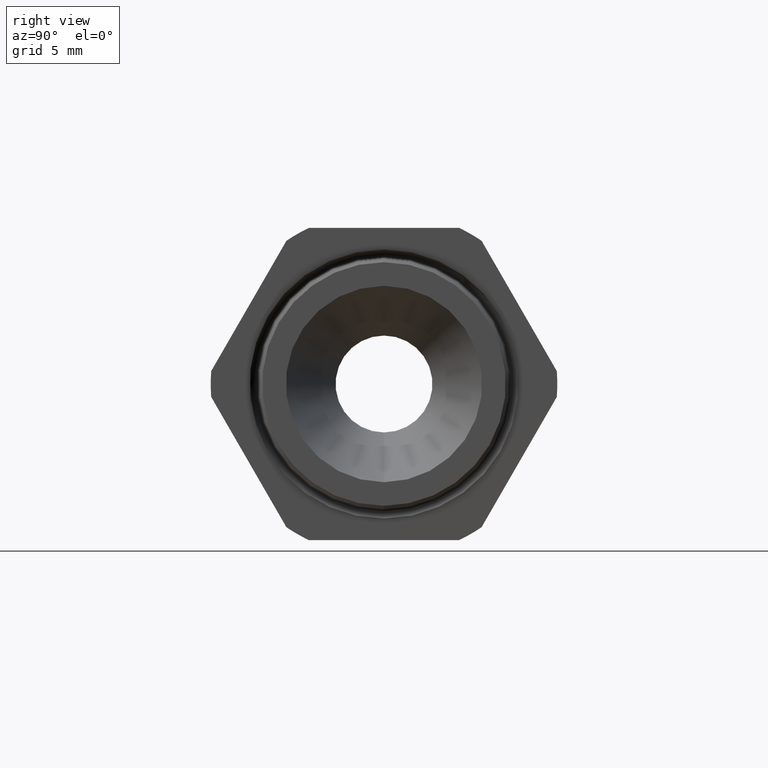
[diagram: clean part render]
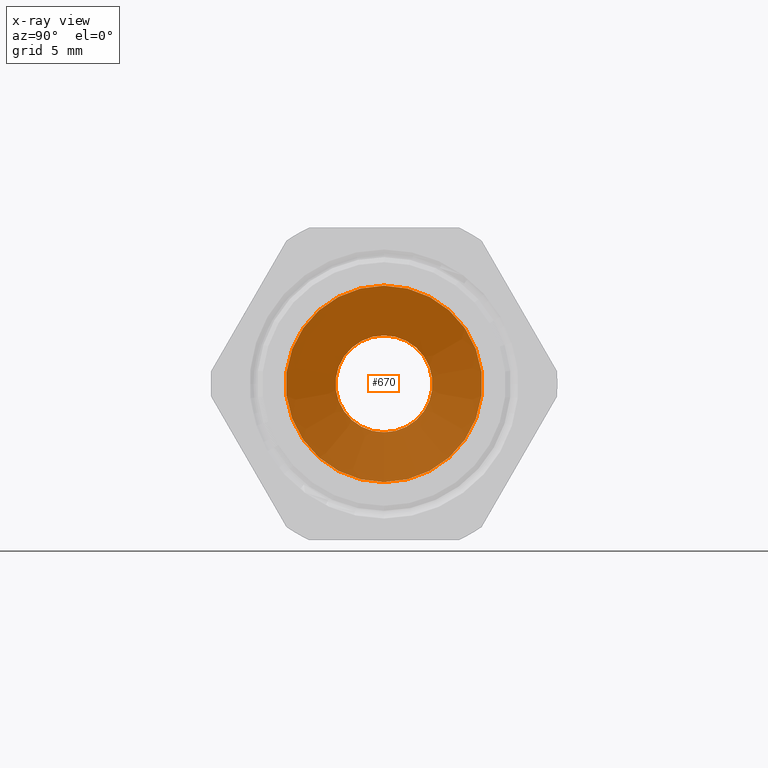
[diagram: x-ray — body ghosted, one internal face saturated and labeled with its STEP entity id]
A machine part, right view, then the same camera in x-ray: the body is ghosted and one INTERNAL B-rep face — a face not visible from any outside direction — is saturated and labeled: STEP entity #670.
In plain terms, the highlighted planar face has unit normal (1, 0, 0).
Its self-contained STEP definition (entity closure, byte-faithful):
#622 = VERTEX_POINT ( 'NONE', #2408 ) ;
#624 = EDGE_CURVE ( 'NONE', #622, #625, #2407, .T. ) ;
#625 = VERTEX_POINT ( 'NONE', #2402 ) ;
#664 = VERTEX_POINT ( 'NONE', #2478 ) ;
#666 = EDGE_CURVE ( 'NONE', #667, #664, #2477, .T. ) ;
#667 = VERTEX_POINT ( 'NONE', #2472 ) ;
#670 = ADVANCED_FACE ( 'NONE', ( #2467, #2466 ), #2465, .T. ) ;
#671 = EDGE_LOOP ( 'NONE', ( #672, #720 ) ) ;
#672 = ORIENTED_EDGE ( 'NONE', *, *, #666, .T. ) ;
#720 = ORIENTED_EDGE ( 'NONE', *, *, #721, .T. ) ;
#721 = EDGE_CURVE ( 'NONE', #664, #667, #2572, .T. ) ;
#722 = EDGE_LOOP ( 'NONE', ( #723, #725 ) ) ;
#723 = ORIENTED_EDGE ( 'NONE', *, *, #724, .F. ) ;
#724 = EDGE_CURVE ( 'NONE', #625, #622, #2567, .T. ) ;
#725 = ORIENTED_EDGE ( 'NONE', *, *, #624, .F. ) ;
#2402 = CARTESIAN_POINT ( 'NONE',  ( -1.093149606299212500, 0.0000000000000000000, -0.1349999999999999800 ) ) ;
#2403 = DIRECTION ( 'NONE',  ( 0.0000000000000000000, 0.0000000000000000000, -1.000000000000000000 ) ) ;
#2404 = DIRECTION ( 'NONE',  ( 1.000000000000000000, 0.0000000000000000000, 0.0000000000000000000 ) ) ;
#2405 = CARTESIAN_POINT ( 'NONE',  ( -1.093149606299212500, 0.0000000000000000000, 0.0000000000000000000 ) ) ;
#2406 = AXIS2_PLACEMENT_3D ( 'NONE', #2405, #2404, #2403 ) ;
#2407 = CIRCLE ( 'NONE', #2406, 0.1349999999999999800 ) ;
#2408 = CARTESIAN_POINT ( 'NONE',  ( -1.093149606299212500, 1.653273178848926900E-017, 0.1349999999999999800 ) ) ;
#2461 = DIRECTION ( 'NONE',  ( 0.0000000000000000000, 0.0000000000000000000, -1.000000000000000000 ) ) ;
#2462 = DIRECTION ( 'NONE',  ( 1.000000000000000000, 0.0000000000000000000, 0.0000000000000000000 ) ) ;
#2463 = CARTESIAN_POINT ( 'NONE',  ( -1.093149606299212500, 0.2737499999999999900, 0.0000000000000000000 ) ) ;
#2464 = AXIS2_PLACEMENT_3D ( 'NONE', #2463, #2462, #2461 ) ;
#2465 = PLANE ( 'NONE',  #2464 ) ;
#2466 = FACE_BOUND ( 'NONE', #722, .T. ) ;
#2467 = FACE_OUTER_BOUND ( 'NONE', #671, .T. ) ;
#2472 = CARTESIAN_POINT ( 'NONE',  ( -1.093149606299212500, 0.0000000000000000000, -0.2737499999999999900 ) ) ;
#2473 = DIRECTION ( 'NONE',  ( 0.0000000000000000000, 0.0000000000000000000, -1.000000000000000000 ) ) ;
#2474 = DIRECTION ( 'NONE',  ( 1.000000000000000000, 0.0000000000000000000, 0.0000000000000000000 ) ) ;
#2475 = CARTESIAN_POINT ( 'NONE',  ( -1.093149606299212500, 0.0000000000000000000, 0.0000000000000000000 ) ) ;
#2476 = AXIS2_PLACEMENT_3D ( 'NONE', #2475, #2474, #2473 ) ;
#2477 = CIRCLE ( 'NONE', #2476, 0.2737499999999999900 ) ;
#2478 = CARTESIAN_POINT ( 'NONE',  ( -1.093149606299212500, 3.352470612665879100E-017, 0.2737499999999999900 ) ) ;
#2563 = DIRECTION ( 'NONE',  ( 0.0000000000000000000, 0.0000000000000000000, -1.000000000000000000 ) ) ;
#2564 = DIRECTION ( 'NONE',  ( 1.000000000000000000, 0.0000000000000000000, 0.0000000000000000000 ) ) ;
#2565 = CARTESIAN_POINT ( 'NONE',  ( -1.093149606299212500, 0.0000000000000000000, 0.0000000000000000000 ) ) ;
#2566 = AXIS2_PLACEMENT_3D ( 'NONE', #2565, #2564, #2563 ) ;
#2567 = CIRCLE ( 'NONE', #2566, 0.1349999999999999800 ) ;
#2568 = DIRECTION ( 'NONE',  ( 0.0000000000000000000, 0.0000000000000000000, -1.000000000000000000 ) ) ;
#2569 = DIRECTION ( 'NONE',  ( 1.000000000000000000, 0.0000000000000000000, 0.0000000000000000000 ) ) ;
#2570 = CARTESIAN_POINT ( 'NONE',  ( -1.093149606299212500, 0.0000000000000000000, 0.0000000000000000000 ) ) ;
#2571 = AXIS2_PLACEMENT_3D ( 'NONE', #2570, #2569, #2568 ) ;
#2572 = CIRCLE ( 'NONE', #2571, 0.2737499999999999900 ) ;